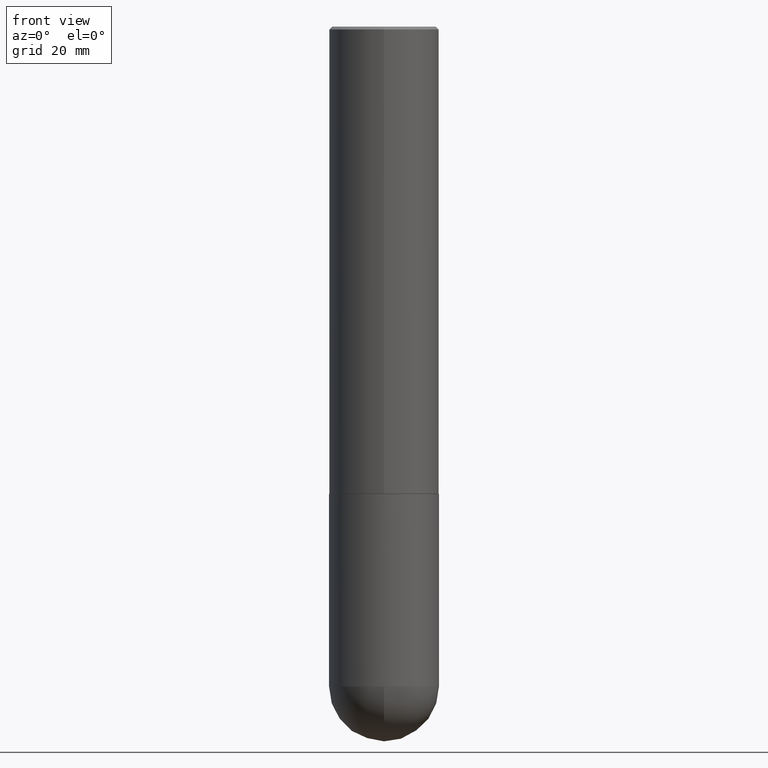
[diagram: clean part render]
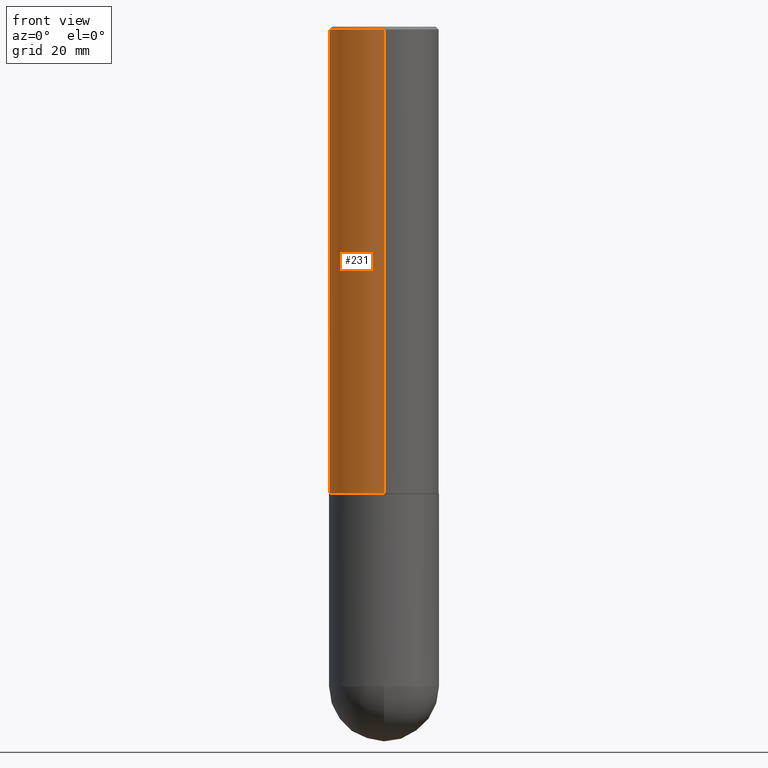
[diagram: same view with one face highlighted and labeled with its STEP entity id]
A machine part, front view. The second image highlights one B-rep face of the part: STEP entity #231.
In plain terms, the highlighted cylindrical surface (partial cylindrical patch) has radius 10 mm, axis along (-0, 0, 1).
Its self-contained STEP definition (entity closure, byte-faithful):
#5 = AXIS2_PLACEMENT_3D ( 'NONE', #137, #402, #244 ) ;
#11 = EDGE_LOOP ( 'NONE', ( #157, #194, #357, #211 ) ) ;
#20 = CARTESIAN_POINT ( 'NONE',  ( 2.749192406205083217E-15, 0.3936999999999999389, -0.02000000000000146105 ) ) ;
#21 = VERTEX_POINT ( 'NONE', #367 ) ;
#51 = CARTESIAN_POINT ( 'NONE',  ( -2.749192406205084400E-15, -0.3937000000000002164, 1.373799468403649886E-15 ) ) ;
#74 = VECTOR ( 'NONE', #314, 39.37007874015748143 ) ;
#79 = FACE_OUTER_BOUND ( 'NONE', #11, .T. ) ;
#80 = CARTESIAN_POINT ( 'NONE',  ( 8.185798893771481388E-29, -1.167363155092092416E-14, -3.345400000000000151 ) ) ;
#87 = EDGE_CURVE ( 'NONE', #243, #21, #254, .T. ) ;
#96 = EDGE_CURVE ( 'NONE', #264, #21, #392, .T. ) ;
#121 = CIRCLE ( 'NONE', #291, 0.3937000000000004385 ) ;
#137 = CARTESIAN_POINT ( 'NONE',  ( 4.893763910905431166E-31, -6.978915257321081641E-17, -0.02000000000000008715 ) ) ;
#147 = LINE ( 'NONE', #408, #169 ) ;
#156 = EDGE_CURVE ( 'NONE', #256, #264, #121, .T. ) ;
#157 = ORIENTED_EDGE ( 'NONE', *, *, #277, .F. ) ;
#169 = VECTOR ( 'NONE', #381, 39.37007874015748143 ) ;
#194 = ORIENTED_EDGE ( 'NONE', *, *, #156, .T. ) ;
#205 = CARTESIAN_POINT ( 'NONE',  ( 0.000000000000000000, 0.000000000000000000, 0.000000000000000000 ) ) ;
#211 = ORIENTED_EDGE ( 'NONE', *, *, #87, .F. ) ;
#231 = ADVANCED_FACE ( 'NONE', ( #79 ), #238, .T. ) ;
#238 = CYLINDRICAL_SURFACE ( 'NONE', #285, 0.3937000000000002164 ) ;
#243 = VERTEX_POINT ( 'NONE', #20 ) ;
#244 = DIRECTION ( 'NONE',  ( -6.982962677686265133E-15, -1.000000000000000000, 3.491137977679279424E-15 ) ) ;
#248 = CARTESIAN_POINT ( 'NONE',  ( -2.749192406205003936E-15, -0.3937000000000120958, -3.345399999999998819 ) ) ;
#254 = CIRCLE ( 'NONE', #5, 0.3937000000000000499 ) ;
#256 = VERTEX_POINT ( 'NONE', #399 ) ;
#264 = VERTEX_POINT ( 'NONE', #248 ) ;
#276 = DIRECTION ( 'NONE',  ( -2.446881955452705196E-29, 3.489457628660526153E-15, 1.000000000000000000 ) ) ;
#277 = EDGE_CURVE ( 'NONE', #256, #243, #147, .T. ) ;
#285 = AXIS2_PLACEMENT_3D ( 'NONE', #205, #366, #342 ) ;
#291 = AXIS2_PLACEMENT_3D ( 'NONE', #80, #276, #373 ) ;
#314 = DIRECTION ( 'NONE',  ( -2.446881955452705196E-29, 3.489457628660526153E-15, 1.000000000000000000 ) ) ;
#342 = DIRECTION ( 'NONE',  ( -6.982962677686265922E-15, -1.000000000000000000, 3.489457628660526153E-15 ) ) ;
#357 = ORIENTED_EDGE ( 'NONE', *, *, #96, .T. ) ;
#366 = DIRECTION ( 'NONE',  ( -2.446881955452705196E-29, 3.489457628660526153E-15, 1.000000000000000000 ) ) ;
#367 = CARTESIAN_POINT ( 'NONE',  ( -2.700978061722651252E-15, -0.3937000000000001054, -0.01999999999999870978 ) ) ;
#373 = DIRECTION ( 'NONE',  ( -6.982962677686265922E-15, -1.000000000000000000, 4.163344669033670901E-15 ) ) ;
#381 = DIRECTION ( 'NONE',  ( -2.446881955452705196E-29, 3.489457628660526153E-15, 1.000000000000000000 ) ) ;
#392 = LINE ( 'NONE', #51, #74 ) ;
#399 = CARTESIAN_POINT ( 'NONE',  ( 2.797406750687558174E-15, 0.3936999999999888367, -3.345400000000001928 ) ) ;
#402 = DIRECTION ( 'NONE',  ( -2.446881955452705196E-29, 3.489457628660526153E-15, 1.000000000000000000 ) ) ;
#408 = CARTESIAN_POINT ( 'NONE',  ( 2.797406750687515575E-15, 0.3937000000000002164, -1.373799468403649886E-15 ) ) ;